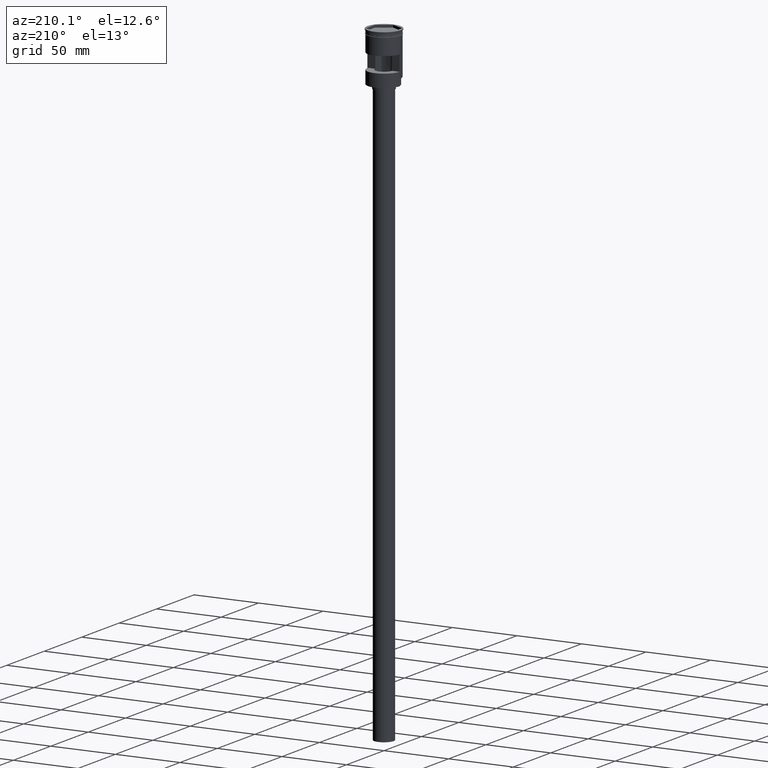
[diagram: clean part render]
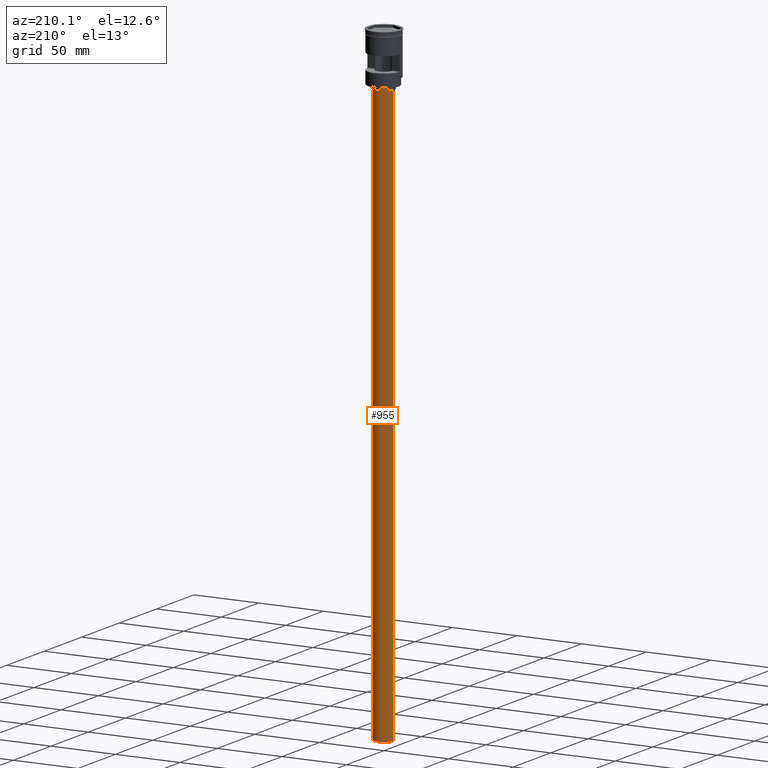
[diagram: same view with one face highlighted and labeled with its STEP entity id]
A machine part, auxiliary view. The second image highlights one B-rep face of the part: STEP entity #955.
In plain terms, the highlighted cylindrical surface (edge-blend (fillet) strip) has radius 7.5 mm, axis along (-0, -0, 1).
Its self-contained STEP definition (entity closure, byte-faithful):
#53 = DIRECTION ( 'NONE',  ( -0.000000000000000000, -0.000000000000000000, 1.000000000000000000 ) ) ;
#91 = CARTESIAN_POINT ( 'NONE',  ( 7.500000000000000000, 0.000000000000000000, -488.5000000000000000 ) ) ;
#168 = CARTESIAN_POINT ( 'NONE',  ( -7.500000000000000000, 9.184850993605147944E-16, -488.5000000000000000 ) ) ;
#199 = VERTEX_POINT ( 'NONE', #168 ) ;
#274 = CYLINDRICAL_SURFACE ( 'NONE', #1101, 7.500000000000000000 ) ;
#312 = EDGE_LOOP ( 'NONE', ( #1225, #444, #519, #1404 ) ) ;
#393 = EDGE_CURVE ( 'NONE', #868, #1181, #902, .T. ) ;
#444 = ORIENTED_EDGE ( 'NONE', *, *, #1458, .T. ) ;
#519 = ORIENTED_EDGE ( 'NONE', *, *, #393, .T. ) ;
#529 = FACE_OUTER_BOUND ( 'NONE', #312, .T. ) ;
#534 = CARTESIAN_POINT ( 'NONE',  ( 0.000000000000000000, 0.000000000000000000, -488.5000000000000000 ) ) ;
#549 = AXIS2_PLACEMENT_3D ( 'NONE', #534, #553, #661 ) ;
#553 = DIRECTION ( 'NONE',  ( 0.000000000000000000, 0.000000000000000000, -1.000000000000000000 ) ) ;
#658 = CARTESIAN_POINT ( 'NONE',  ( -7.500000000000000000, 9.184850993605147944E-16, -488.5000000000000000 ) ) ;
#659 = DIRECTION ( 'NONE',  ( 1.000000000000000000, 0.000000000000000000, 0.000000000000000000 ) ) ;
#661 = DIRECTION ( 'NONE',  ( -1.000000000000000000, 0.000000000000000000, 0.000000000000000000 ) ) ;
#704 = DIRECTION ( 'NONE',  ( -0.000000000000000000, -0.000000000000000000, 1.000000000000000000 ) ) ;
#738 = CARTESIAN_POINT ( 'NONE',  ( 7.500000000000000000, 0.000000000000000000, -488.5000000000000000 ) ) ;
#773 = CIRCLE ( 'NONE', #549, 7.500000000000000000 ) ;
#782 = EDGE_CURVE ( 'NONE', #199, #1262, #773, .T. ) ;
#820 = CARTESIAN_POINT ( 'NONE',  ( 0.000000000000000000, 0.000000000000000000, -41.50000000000000000 ) ) ;
#826 = AXIS2_PLACEMENT_3D ( 'NONE', #820, #828, #1318 ) ;
#828 = DIRECTION ( 'NONE',  ( 0.000000000000000000, 0.000000000000000000, -1.000000000000000000 ) ) ;
#833 = VECTOR ( 'NONE', #53, 1000.000000000000000 ) ;
#849 = LINE ( 'NONE', #738, #878 ) ;
#868 = VERTEX_POINT ( 'NONE', #1597 ) ;
#878 = VECTOR ( 'NONE', #704, 1000.000000000000000 ) ;
#882 = DIRECTION ( 'NONE',  ( -0.000000000000000000, -0.000000000000000000, 1.000000000000000000 ) ) ;
#902 = CIRCLE ( 'NONE', #826, 7.500000000000000000 ) ;
#931 = EDGE_CURVE ( 'NONE', #1262, #1181, #849, .T. ) ;
#955 = ADVANCED_FACE ( 'NONE', ( #529 ), #274, .T. ) ;
#1101 = AXIS2_PLACEMENT_3D ( 'NONE', #1498, #882, #659 ) ;
#1172 = LINE ( 'NONE', #658, #833 ) ;
#1181 = VERTEX_POINT ( 'NONE', #1543 ) ;
#1225 = ORIENTED_EDGE ( 'NONE', *, *, #782, .F. ) ;
#1262 = VERTEX_POINT ( 'NONE', #91 ) ;
#1318 = DIRECTION ( 'NONE',  ( -1.000000000000000000, 0.000000000000000000, 0.000000000000000000 ) ) ;
#1404 = ORIENTED_EDGE ( 'NONE', *, *, #931, .F. ) ;
#1458 = EDGE_CURVE ( 'NONE', #199, #868, #1172, .T. ) ;
#1498 = CARTESIAN_POINT ( 'NONE',  ( 0.000000000000000000, 0.000000000000000000, -488.5000000000000000 ) ) ;
#1543 = CARTESIAN_POINT ( 'NONE',  ( 7.500000000000000000, 0.000000000000000000, -41.50000000000000000 ) ) ;
#1597 = CARTESIAN_POINT ( 'NONE',  ( -7.500000000000000000, 9.184850993605147944E-16, -41.50000000000000000 ) ) ;